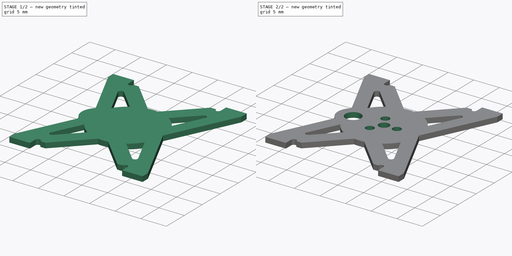
[diagram: build sequence overview — one tinted view per stage of 2, left to right]
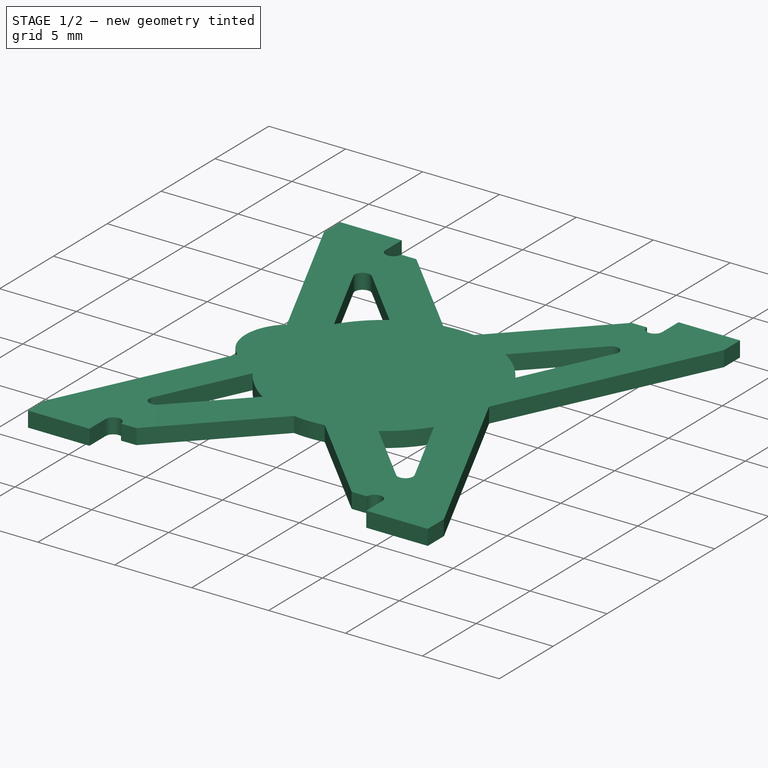
[diagram: stage 1 of 2 — iso view after this stage's code; geometry added in this stage tinted green]
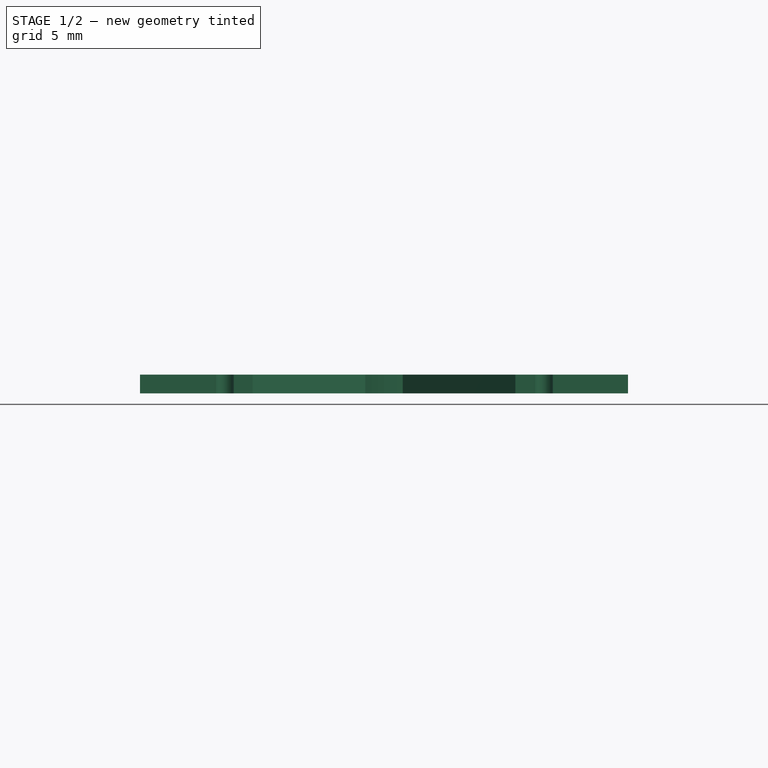
[diagram: stage 1 of 2 — front view after this stage's code; geometry added in this stage tinted green]
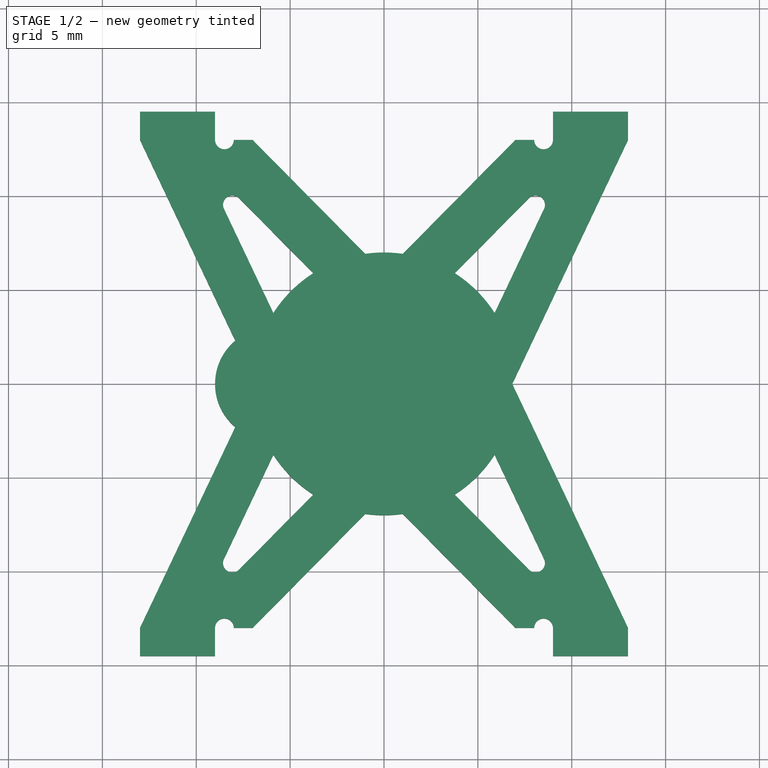
[diagram: stage 1 of 2 — top view after this stage's code; geometry added in this stage tinted green]
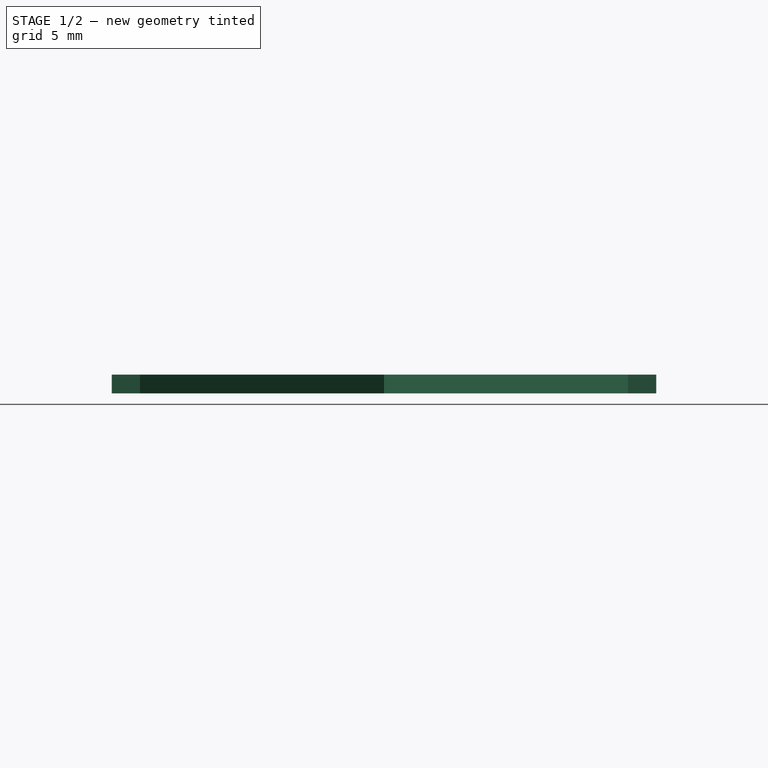
[diagram: stage 1 of 2 — right view after this stage's code; geometry added in this stage tinted green]
FCSTD DOCUMENT  (FreeCAD 0.18.1R)
Label: PCB_Platine
License: All rights reserved
LicenseURL: http://en.wikipedia.org/wiki/All_rights_reserved
objects: Sketcher::SketchObject×3, PartDesign::Pad×1, PartDesign::Mirrored×1, PartDesign::Pocket×1, PartDesign::Body×1
note: 9 computed .brp shape members not serialized (recipe doc carries the construction recipe); baked Part::Feature solids carry a one-line shape summary decoded from their .brp

FEATURE [Sketcher::SketchObject] Sketch007
  MapMode = 5
  Support = -> [XY_Plane]
  sketch-geometry (34):
    g0: LineSegment [constr] StartX=-13 StartY=13 StartZ=0 EndX=-9 EndY=13 EndZ=0
    g1: LineSegment [constr] StartX=9 StartY=13 StartZ=0 EndX=13 EndY=13 EndZ=0
    g2: ArcOfCircle [constr] CenterX=-13 CenterY=13.75 CenterZ=0 NormalX=0 NormalY=0 NormalZ=1 AngleXU=0 Radius=0.75 StartAngle=1.5708 EndAngle=4.71239
    g3: ArcOfCircle [constr] CenterX=-9 CenterY=13.75 CenterZ=0 NormalX=0 NormalY=0 NormalZ=1 AngleXU=0 Radius=0.75 StartAngle=4.71239 EndAngle=7.85398
    g4: LineSegment StartX=-13 StartY=14.5 StartZ=0 EndX=-9 EndY=14.5 EndZ=0
    g5: ArcOfCircle [constr] CenterX=9 CenterY=13.75 CenterZ=0 NormalX=0 NormalY=0 NormalZ=1 AngleXU=0 Radius=0.75 StartAngle=1.5708 EndAngle=4.71239
    g6: ArcOfCircle [constr] CenterX=13 CenterY=13.75 CenterZ=0 NormalX=0 NormalY=0 NormalZ=1 AngleXU=0 Radius=0.75 StartAngle=4.71239 EndAngle=7.85398
    g7: LineSegment StartX=9 StartY=14.5 StartZ=0 EndX=13 EndY=14.5 EndZ=0
    g8: LineSegment StartX=13 StartY=14.5 StartZ=0 EndX=13 EndY=13 EndZ=0
    g9: LineSegment StartX=9 StartY=14.5 StartZ=0 EndX=9 EndY=13 EndZ=0
    g10: LineSegment StartX=-13 StartY=14.5 StartZ=0 EndX=-13 EndY=13 EndZ=0
    g11: LineSegment StartX=-9 StartY=14.5 StartZ=0 EndX=-9 EndY=13 EndZ=0
    g12: ArcOfCircle CenterX=8.5 CenterY=13 CenterZ=0 NormalX=0 NormalY=0 NormalZ=1 AngleXU=0 Radius=0.5 StartAngle=3.14159 EndAngle=6.28319
    g13: LineSegment StartX=8 StartY=13 StartZ=0 EndX=7 EndY=13 EndZ=0
    g14: LineSegment StartX=7 StartY=13 StartZ=0 EndX=1 EndY=6.9282 EndZ=0
    g15: ArcOfCircle CenterX=-8.5 CenterY=13 CenterZ=0 NormalX=0 NormalY=0 NormalZ=1 AngleXU=0 Radius=0.5 StartAngle=3.14159 EndAngle=6.28319
    g16: LineSegment StartX=-8 StartY=13 StartZ=0 EndX=-7 EndY=13 EndZ=0
    g17: LineSegment StartX=-7 StartY=13 StartZ=0 EndX=-1 EndY=6.9282 EndZ=0
    g18: ArcOfCircle CenterX=0 CenterY=0 CenterZ=0 NormalX=0 NormalY=0 NormalZ=1 AngleXU=0 Radius=7 StartAngle=1.42745 EndAngle=1.71414
    g19: LineSegment StartX=6.83213 StartY=0 StartZ=0 EndX=-6.83213 EndY=0 EndZ=0
    g20: LineSegment StartX=-7.92416 StartY=2.30166 StartZ=0 EndX=-13 EndY=13 EndZ=0
    g21: LineSegment StartX=-8.52601 StartY=9.328 StartZ=0 EndX=-5.89286 EndY=3.77812 EndZ=0
    g22: LineSegment StartX=-7.71863 StartY=9.89377 StartZ=0 EndX=-3.7701 EndY=5.898 EndZ=0
    g23: ArcOfCircle CenterX=-8.07428 CenterY=9.54233 CenterZ=0 NormalX=0 NormalY=0 NormalZ=1 AngleXU=0 Radius=0.5 StartAngle=0.779451 EndAngle=3.58459
    g24: LineSegment [constr] StartX=-11 StartY=13 StartZ=0 EndX=0 EndY=0 EndZ=0
    g25: ArcOfCircle CenterX=0 CenterY=0 CenterZ=0 NormalX=0 NormalY=0 NormalZ=1 AngleXU=0 Radius=7 StartAngle=2.13955 EndAngle=2.57147
    g26: ArcOfCircle CenterX=0 CenterY=0 CenterZ=0 NormalX=0 NormalY=0 NormalZ=1 AngleXU=0 Radius=7 StartAngle=0.570118 EndAngle=1.00204
    g27: LineSegment StartX=8.52601 StartY=9.328 StartZ=0 EndX=5.89286 EndY=3.77812 EndZ=0
    g28: LineSegment StartX=7.71863 StartY=9.89377 StartZ=0 EndX=3.7701 EndY=5.898 EndZ=0
    g29: ArcOfCircle CenterX=8.07428 CenterY=9.54233 CenterZ=0 NormalX=0 NormalY=0 NormalZ=1 AngleXU=0 Radius=0.5 StartAngle=5.84018 EndAngle=8.64533
    g30: LineSegment StartX=6.83213 StartY=0 StartZ=0 EndX=13 EndY=13 EndZ=0
    g31: LineSegment StartX=-9 StartY=4e-16 StartZ=0 EndX=-6.83213 EndY=0 EndZ=0
    g32: LineSegment [constr] StartX=-7.92416 StartY=2.30166 StartZ=0 EndX=-6.83213 EndY=0 EndZ=0
    g33: ArcOfCircle CenterX=-6 CenterY=0 CenterZ=0 NormalX=0 NormalY=0 NormalZ=1 AngleXU=0 Radius=3 StartAngle=2.2671 EndAngle=3.14159
  constraints (101):
    c: Horizontal(g0)
    c: Horizontal(g1)
    c: Coincident(g2,g0)
    c: Coincident(g3,g0)
    c: Coincident(g4,g2)
    c: Coincident(g4,g3)
    c: Horizontal(g4)
    c: Vertical(g0,g2)
    c: Vertical(g2,g2)
    c: Vertical(g3,g3)
    c: Vertical(g3,g0)
    c: Radius(g2) = 0.75
    c: Coincident(g5,g1)
    c: Coincident(g6,g1)
    c: Coincident(g7,g6)
    c: Horizontal(g7)
    c: Coincident(g7,g5)
    c: Vertical(g5,g5)
    c: Vertical(g5,g1)
    c: Vertical(g1,g6)
    c: Vertical(g6,g6)
    c: DistanceX(g0,g0) = 4
    c: DistanceX(g0,g-1) = 13
    c: DistanceX(g-1,g6) = 13
    c: Equal(g1,g0)
    c: Equal(g6,g2)
    c: Horizontal(g3,g5)
    c: Coincident(g8,g7)
    c: Coincident(g8,g1)
    c: Coincident(g9,g7)
    c: Coincident(g9,g1)
    c: Coincident(g10,g4)
    c: Coincident(g10,g0)
    c: Coincident(g11,g4)
    c: Coincident(g11,g0)
    c: Radius(g12) = 0.5
    c: Coincident(g12,g9)
    c: Horizontal(g12,g9)
    c: Horizontal(g9,g12)
    c: Coincident(g13,g12)
    c: Horizontal(g13)
    c: DistanceX(g13,g13) = 1
    c: Coincident(g14,g13)
    c: Coincident(g15,g11)
    c: Horizontal(g11,g15)
    c: Horizontal(g15,g15)
    c: Radius(g15) = 0.5
    c: Coincident(g16,g15)
    c: Horizontal(g16)
    c: Equal(g16,g13)
    c: Coincident(g17,g16)
    c: Coincident(g18,g17)
    c: Coincident(g18,g14)
    c: PointOnObject(g19,g-1)
    c: Symmetric(g19,g19,g-2)
    c: Radius(g18) = 7
    c: Coincident(g20,g10)
    c: Coincident(g23,g21)
    c: Coincident(g23,g22)
    c: Tangent(g22,g23)
    c: Tangent(g23,g21)
    c: PointOnObject(g24,g0)
    c: Coincident(g24,g18)
    c: DistanceX(g10,g24) = 2
    c: PointOnObject(g23,g24)
    c: Radius(g23) = 0.5
    c: Coincident(g25,g18)
    c: Coincident(g25,g21)
    c: Coincident(g25,g22)
    c: Equal(g18,g25)
    c: Parallel(g21,g20)
    c: Parallel(g22,g17)
    c: Coincident(g-1,g18)
    c: Distance(g23,g18) = 12.5
    c: Distance(g21,g22) = 3
    c: Coincident(g29,g27)
    c: Coincident(g29,g28)
    c: Tangent(g28,g29)
    c: Tangent(g29,g27)
    c: Radius(g29) = 0.5
    c: Coincident(g26,g27)
    c: Coincident(g26,g28)
    c: Parallel(g27,g30)
    c: Horizontal(g17,g14)
    c: Symmetric(g26,g22,g-2)
    c: Symmetric(g23,g29,g-2)
    c: Coincident(g30,g19)
    c: Coincident(g30,g8)
    c: DistanceY(g-1,g4) = 14.5
    c: Coincident(g26,g18)
    c: DistanceX(g17,g14) = 2
    c: PointOnObject(g31,g-1)
    c: Coincident(g31,g19)
    c: Coincident(g32,g20)
    c: Coincident(g32,g19)
    c: Parallel(g32,g20)
    c: PointOnObject(g33,g19)
    c: Coincident(g33,g20)
    c: Coincident(g33,g31)
    c: Distance(g33,g18) = 6
    c: Radius(g33) = 3
FEATURE [PartDesign::Pad] Pad
  Length = 1
  Length2 = 100
  Profile = -> Sketch007
  Type = 0
FEATURE [PartDesign::Mirrored] Mirrored
  BaseFeature = -> Pad
  MirrorPlane = -> Sketch007 [H_Axis]
  Originals = -> [Pad]
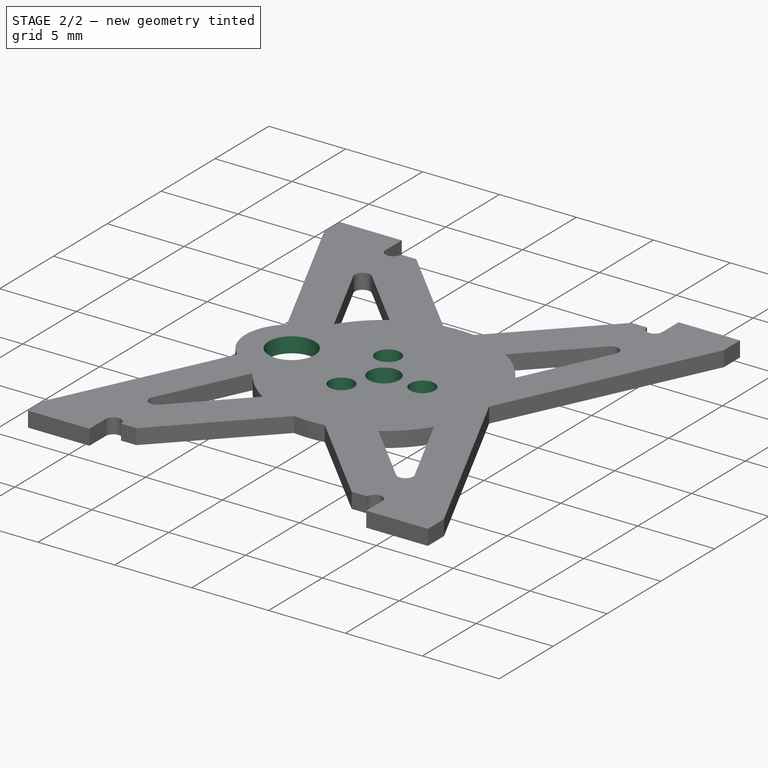
[diagram: stage 2 of 2 — iso view after this stage's code; geometry added in this stage tinted green]
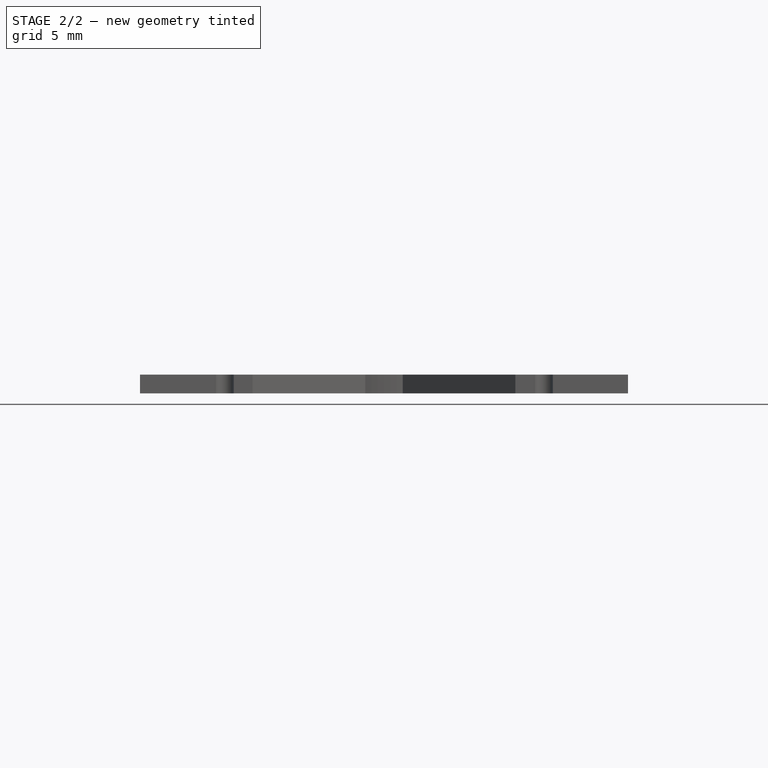
[diagram: stage 2 of 2 — front view after this stage's code; geometry added in this stage tinted green]
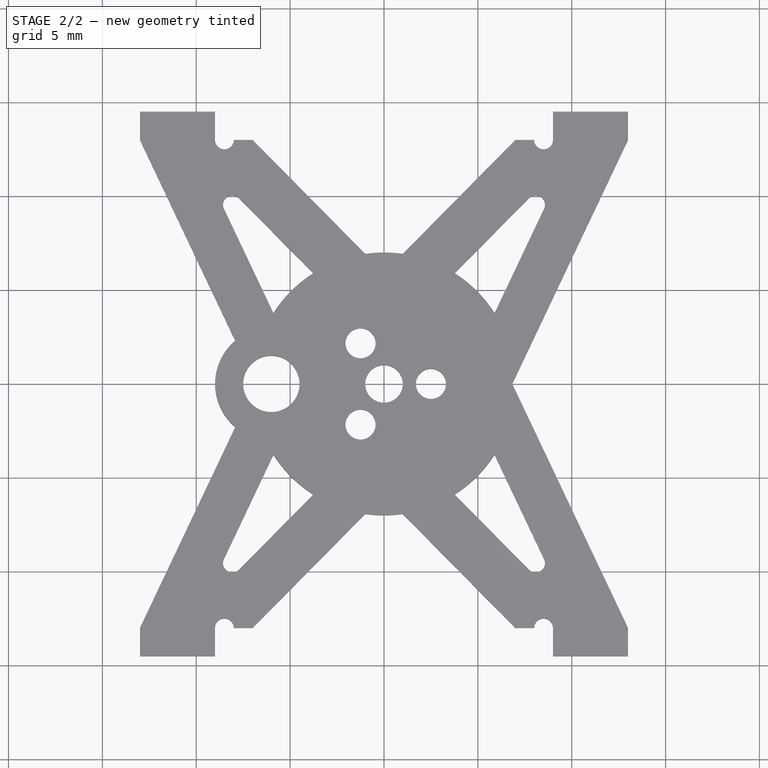
[diagram: stage 2 of 2 — top view after this stage's code; geometry added in this stage tinted green]
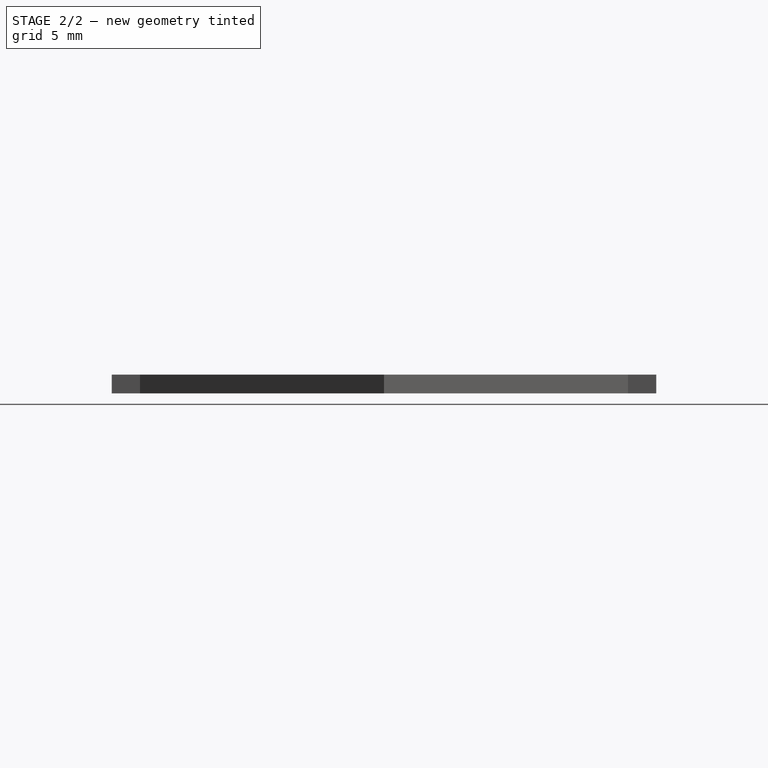
[diagram: stage 2 of 2 — right view after this stage's code; geometry added in this stage tinted green]
FEATURE [Sketcher::SketchObject] Sketch
  MapMode = 5
  Placement = pos=(0,0,1) rot=(0,0,1;0rad)
  Support = -> [Mirrored]
  sketch-geometry (1):
    g0: Circle CenterX=0 CenterY=0 CenterZ=0 NormalX=0 NormalY=0 NormalZ=1 AngleXU=0 Radius=9
  constraints (2):
    c: Coincident(g0,g-1)
    c: Radius(g0) = 9
FEATURE [Sketcher::SketchObject] Sketch008
  MapMode = 5
  sketch-geometry (16):
    g0: Circle [constr] CenterX=0 CenterY=0 CenterZ=0 NormalX=0 NormalY=0 NormalZ=1 AngleXU=0 Radius=2.5
    g1: Circle CenterX=2.5 CenterY=0 CenterZ=0 NormalX=0 NormalY=0 NormalZ=1 AngleXU=0 Radius=0.8
    g2: Circle CenterX=-1.25 CenterY=-2.16506 CenterZ=0 NormalX=0 NormalY=0 NormalZ=1 AngleXU=0 Radius=0.8
    g3: Circle CenterX=-1.25 CenterY=2.16506 CenterZ=0 NormalX=0 NormalY=0 NormalZ=1 AngleXU=0 Radius=0.8
    g4: LineSegment [constr] StartX=-1.25 StartY=2.16506 StartZ=0 EndX=-1.25 EndY=-2.16506 EndZ=0
    g5: LineSegment [constr] StartX=2.5 StartY=0 StartZ=0 EndX=-1.25 EndY=2.16506 EndZ=0
    g6: ArcOfCircle [constr] CenterX=2.5 CenterY=0 CenterZ=0 NormalX=0 NormalY=0 NormalZ=1 AngleXU=0 Radius=1.5 StartAngle=4.56903 EndAngle=7.99733
    g7: ArcOfCircle [constr] CenterX=2 CenterY=-3.4641 CenterZ=0 NormalX=0 NormalY=0 NormalZ=1 AngleXU=0 Radius=2 StartAngle=1.42745 EndAngle=2.76134
    g8: ArcOfCircle [constr] CenterX=-1.25 CenterY=-2.16506 CenterZ=0 NormalX=0 NormalY=0 NormalZ=1 AngleXU=0 Radius=1.5 StartAngle=2.47465 EndAngle=5.90294
    g9: ArcOfCircle [constr] CenterX=-4 CenterY=2e-16 CenterZ=0 NormalX=0 NormalY=0 NormalZ=1 AngleXU=0 Radius=2 StartAngle=5.61623 EndAngle=6.95013
    g10: ArcOfCircle [constr] CenterX=-1.25 CenterY=2.16506 CenterZ=0 NormalX=0 NormalY=0 NormalZ=1 AngleXU=0 Radius=1.5 StartAngle=0.380251 EndAngle=3.80855
    g11: ArcOfCircle [constr] CenterX=2 CenterY=3.4641 CenterZ=0 NormalX=0 NormalY=0 NormalZ=1 AngleXU=0 Radius=2 StartAngle=3.52184 EndAngle=4.85574
    g12: Circle [constr] CenterX=0 CenterY=0 CenterZ=0 NormalX=0 NormalY=0 NormalZ=1 AngleXU=0 Radius=2
    g13: Circle CenterX=0 CenterY=0 CenterZ=0 NormalX=0 NormalY=0 NormalZ=1 AngleXU=0 Radius=1
    g14: LineSegment [constr] StartX=-1.25 StartY=-2.16506 StartZ=0 EndX=2.5 EndY=0 EndZ=0
    g15: Circle CenterX=-6 CenterY=0 CenterZ=0 NormalX=0 NormalY=0 NormalZ=1 AngleXU=0 Radius=1.5
  constraints (44):
    c: Coincident(g0,g-1)
    c: Radius(g0) = 2.5
    c: Radius(g1) = 0.8
    c: PointOnObject(g2,g0)
    c: PointOnObject(g3,g0)
    c: Equal(g3,g2)
    c: Equal(g2,g1)
    c: Coincident(g4,g3)
    c: Coincident(g4,g2)
    c: Coincident(g5,g1)
    c: Coincident(g5,g3)
    c: Equal(g5,g4)
    c: Coincident(g6,g1)
    c: Coincident(g7,g6)
    c: Coincident(g8,g2)
    c: Coincident(g8,g7)
    c: Coincident(g9,g8)
    c: Coincident(g10,g3)
    c: Coincident(g10,g9)
    c: Coincident(g11,g6)
    c: Tangent(g11,g6)
    c: Tangent(g7,g6)
    c: Tangent(g7,g8)
    c: Tangent(g8,g9)
    c: Tangent(g9,g10)
    c: Coincident(g12,g-1)
    c: Radius(g12) = 2
    c: Tangent(g7,g12)
    c: Tangent(g12,g9)
    c: Tangent(g11,g12)
    c: Equal(g6,g8)
    c: Equal(g8,g10)
    c: Coincident(g13,g-1)
    c: Radius(g13) = 1
    c: Equal(g9,g11)
    c: Radius(g10) = 1.5
    c: PointOnObject(g1,g-1)
    c: Coincident(g14,g2)
    c: Coincident(g14,g1)
    c: Equal(g14,g4)
    c: Tangent(g11,g10) = 1.5708
    c: PointOnObject(g15,g-1)
    c: Radius(g15) = 1.5
    c: Distance(g15,g13) = 6
FEATURE [PartDesign::Pocket] Pocket
  BaseFeature = -> Mirrored
  Length = 5
  Length2 = 100
  Profile = -> Sketch008
  Reversed = true
  Type = 1
FEATURE [PartDesign::Body] Body
  Group = -> [Sketch007,Pad,Mirrored,Sketch,Sketch008,Pocket]
  Origin = -> Origin
  Tip = -> Pocket
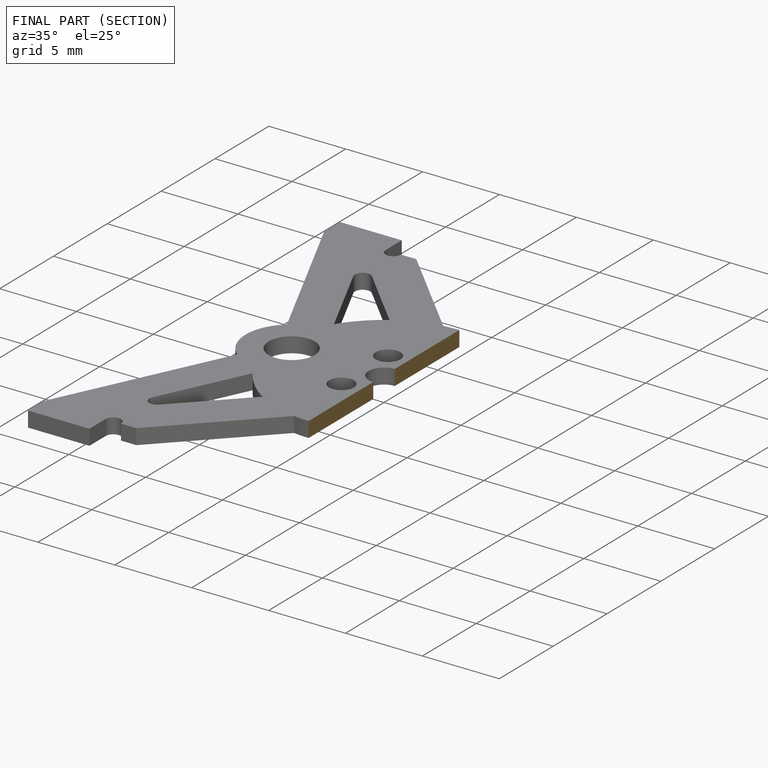
[diagram: finished part — half-section view (interior)]
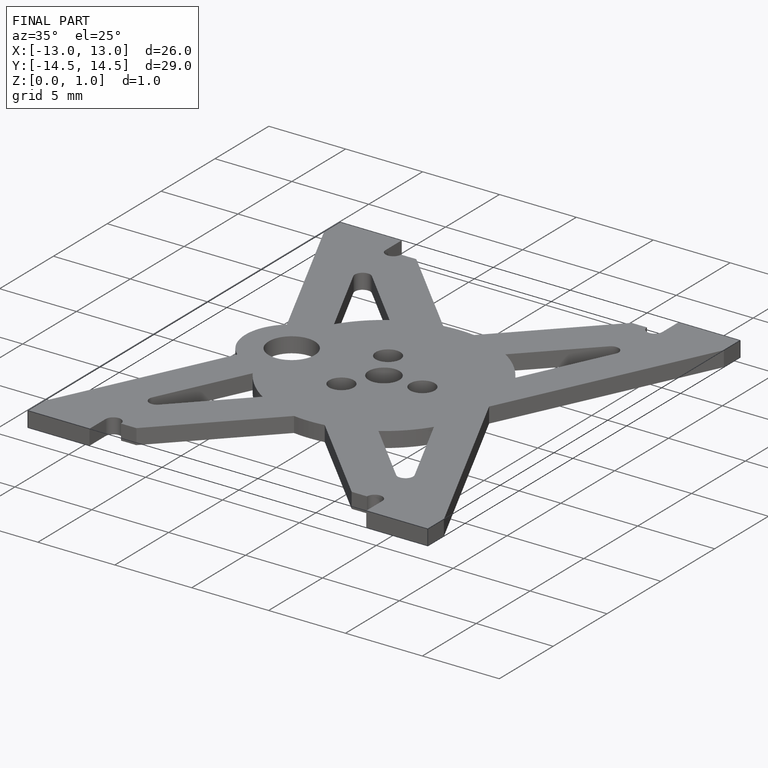
[diagram: finished part — iso view with bounding-box wireframe]
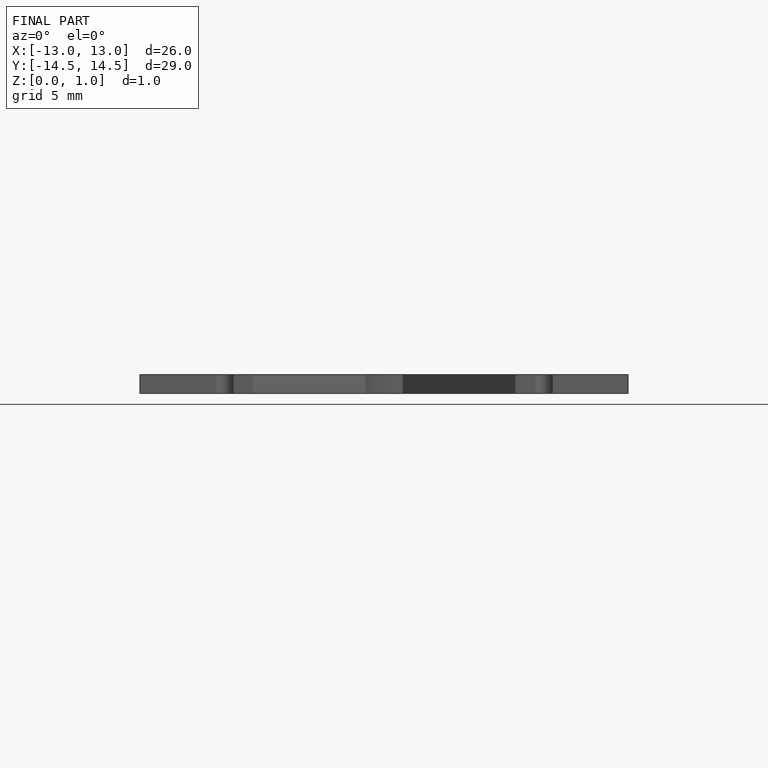
[diagram: finished part — front view with bounding-box wireframe]
